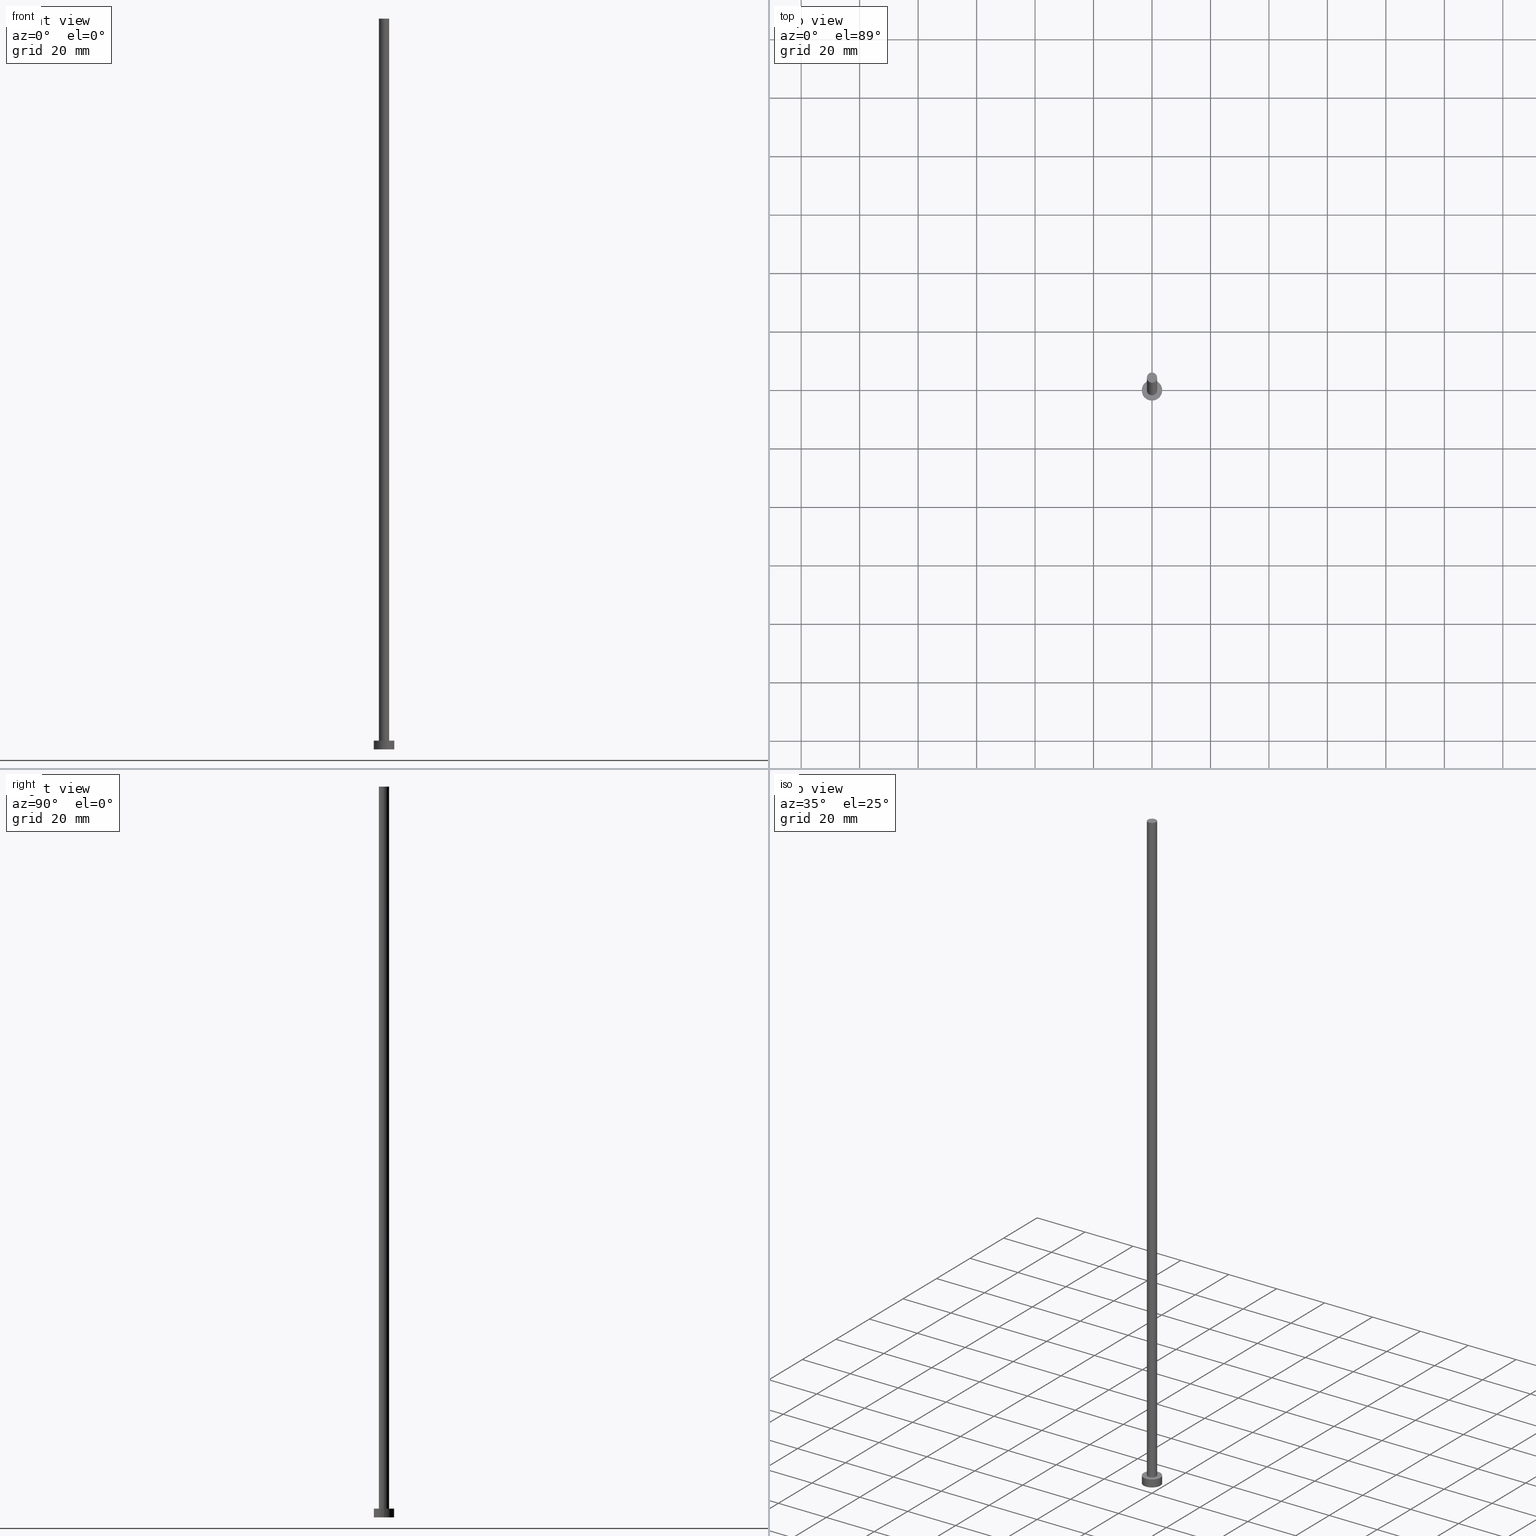
[diagram: canonical four-view strip — front | top / right | iso, engineering-drawing reading convention]
A machine part, canonical four-view strip (front | top / right | iso — engineering-drawing reading convention). The complete STEP part file that produces these views, byte-faithful:
ISO-10303-21;
HEADER;
FILE_DESCRIPTION (( 'STEP AP203' ),
    '1' );
FILE_NAME ('af40.STEP',
    '2023-02-12T12:42:15',
    ( '' ),
    ( '' ),
    'SwSTEP 2.0',
    'SolidWorks 2019',
    '' );
FILE_SCHEMA (( 'CONFIG_CONTROL_DESIGN' ));
ENDSEC;

DATA;
#1 = CALENDAR_DATE ( 2023, 12, 2 ) ;
#2 = CC_DESIGN_SECURITY_CLASSIFICATION ( #249, ( #170 ) ) ;
#3 = CARTESIAN_POINT ( 'NONE',  ( 1.750000000000000000, 2.143131898507868297E-16, 250.0000000000000000 ) ) ;
#4 = PRODUCT ( 'af40', 'af40', '', ( #33 ) ) ;
#5 = FACE_OUTER_BOUND ( 'NONE', #206, .T. ) ;
#6 = CYLINDRICAL_SURFACE ( 'NONE', #65, 3.500000000000000444 ) ;
#7 = CC_DESIGN_APPROVAL ( #126, ( #170 ) ) ;
#8 = ORIENTED_EDGE ( 'NONE', *, *, #120, .T. ) ;
#9 = CARTESIAN_POINT ( 'NONE',  ( -1.750000000000000000, 0.000000000000000000, 250.0000000000000000 ) ) ;
#10 = DIRECTION ( 'NONE',  ( 0.000000000000000000, 0.000000000000000000, 1.000000000000000000 ) ) ;
#11 = PLANE ( 'NONE',  #173 ) ;
#12 = CARTESIAN_POINT ( 'NONE',  ( 0.000000000000000000, 0.000000000000000000, 0.000000000000000000 ) ) ;
#13 = PLANE ( 'NONE',  #70 ) ;
#14 = UNCERTAINTY_MEASURE_WITH_UNIT (LENGTH_MEASURE( 1.000000000000000082E-05 ), #54, 'distance_accuracy_value', 'NONE');
#15 = ADVANCED_BREP_SHAPE_REPRESENTATION ( 'af40', ( #215, #155 ), #100 ) ;
#16 = DIRECTION ( 'NONE',  ( 1.000000000000000000, 0.000000000000000000, 0.000000000000000000 ) ) ;
#17 = ORIENTED_EDGE ( 'NONE', *, *, #174, .T. ) ;
#18 = CC_DESIGN_PERSON_AND_ORGANIZATION_ASSIGNMENT ( #169, #142, ( #59 ) ) ;
#19 = APPROVAL_ROLE ( '' ) ;
#20 = CARTESIAN_POINT ( 'NONE',  ( -1.750000000000000000, 0.000000000000000000, 3.000000000000000000 ) ) ;
#21 = DIRECTION ( 'NONE',  ( -1.000000000000000000, 0.000000000000000000, 0.000000000000000000 ) ) ;
#22 = PERSON ( 'NEUR�EN�', 'NEUR�EN�', 'NEUR�EN�', ('NEUR�EN�'), ('NEUR�EN�'), ('NEUR�EN�') ) ;
#23 = CARTESIAN_POINT ( 'NONE',  ( 0.000000000000000000, 0.000000000000000000, 250.0000000000000000 ) ) ;
#24 = ORIENTED_EDGE ( 'NONE', *, *, #174, .F. ) ;
#25 = CLOSED_SHELL ( 'NONE', ( #79, #152, #230, #98, #101, #85, #191 ) ) ;
#26 = APPROVAL ( #45, 'NEUR�EN�' ) ;
#27 = ORIENTED_EDGE ( 'NONE', *, *, #124, .F. ) ;
#28 = DIRECTION ( 'NONE',  ( 1.000000000000000000, 0.000000000000000000, 0.000000000000000000 ) ) ;
#29 = APPLICATION_PROTOCOL_DEFINITION ( 'international standard', 'config_control_design', 1994, #209 ) ;
#30 = DIRECTION ( 'NONE',  ( -0.000000000000000000, -0.000000000000000000, -1.000000000000000000 ) ) ;
#31 = LINE ( 'NONE', #211, #149 ) ;
#32 = AXIS2_PLACEMENT_3D ( 'NONE', #241, #58, #131 ) ;
#33 = MECHANICAL_CONTEXT ( 'NONE', #209, 'mechanical' ) ;
#34 = CARTESIAN_POINT ( 'NONE',  ( 0.000000000000000000, 0.000000000000000000, 0.000000000000000000 ) ) ;
#35 = CC_DESIGN_PERSON_AND_ORGANIZATION_ASSIGNMENT ( #158, #162, ( #170 ) ) ;
#36 = DIRECTION ( 'NONE',  ( 0.000000000000000000, 0.000000000000000000, 1.000000000000000000 ) ) ;
#37 = APPROVAL_DATE_TIME ( #128, #126 ) ;
#38 = DIRECTION ( 'NONE',  ( 0.000000000000000000, 0.000000000000000000, 1.000000000000000000 ) ) ;
#39 = DIRECTION ( 'NONE',  ( 0.000000000000000000, 0.000000000000000000, 1.000000000000000000 ) ) ;
#40 = CARTESIAN_POINT ( 'NONE',  ( -1.750000000000000000, 0.000000000000000000, 250.0000000000000000 ) ) ;
#41 = EDGE_LOOP ( 'NONE', ( #115, #95 ) ) ;
#42 = EDGE_LOOP ( 'NONE', ( #236, #139 ) ) ;
#43 = CARTESIAN_POINT ( 'NONE',  ( 3.500000000000000444, 4.286263797015737088E-16, 0.000000000000000000 ) ) ;
#44 = CC_DESIGN_APPROVAL ( #26, ( #59 ) ) ;
#45 = APPROVAL_STATUS ( 'not_yet_approved' ) ;
#46 = PERSON_AND_ORGANIZATION_ROLE ( 'classification_officer' ) ;
#47 = APPROVAL_ROLE ( '' ) ;
#48 = LINE ( 'NONE', #255, #177 ) ;
#49 = PLANE ( 'NONE',  #110 ) ;
#50 = LOCAL_TIME ( 13, 42, 15.00000000000000000, #250 ) ;
#51 = CIRCLE ( 'NONE', #57, 1.750000000000000000 ) ;
#52 = CIRCLE ( 'NONE', #72, 3.500000000000000444 ) ;
#53 = CALENDAR_DATE ( 2023, 12, 2 ) ;
#54 =( LENGTH_UNIT ( ) NAMED_UNIT ( * ) SI_UNIT ( .MILLI., .METRE. ) );
#55 = CC_DESIGN_PERSON_AND_ORGANIZATION_ASSIGNMENT ( #60, #46, ( #249 ) ) ;
#56 = DIRECTION ( 'NONE',  ( -0.000000000000000000, -0.000000000000000000, -1.000000000000000000 ) ) ;
#57 = AXIS2_PLACEMENT_3D ( 'NONE', #118, #171, #234 ) ;
#58 = DIRECTION ( 'NONE',  ( -0.000000000000000000, -0.000000000000000000, -1.000000000000000000 ) ) ;
#59 = PRODUCT_DEFINITION ( 'NEZN�M�', '', #170, #67 ) ;
#60 = PERSON_AND_ORGANIZATION ( #22, #178 ) ;
#61 = DIRECTION ( 'NONE',  ( 1.000000000000000000, 0.000000000000000000, 0.000000000000000000 ) ) ;
#62 = VERTEX_POINT ( 'NONE', #113 ) ;
#63 = CARTESIAN_POINT ( 'NONE',  ( 0.000000000000000000, 0.000000000000000000, 3.000000000000000000 ) ) ;
#64 = ORIENTED_EDGE ( 'NONE', *, *, #140, .F. ) ;
#65 = AXIS2_PLACEMENT_3D ( 'NONE', #77, #201, #225 ) ;
#66 = PERSON_AND_ORGANIZATION ( #22, #178 ) ;
#67 = DESIGN_CONTEXT ( 'detailed design', #222, 'design' ) ;
#68 = EDGE_CURVE ( 'NONE', #71, #185, #180, .T. ) ;
#69 = DIRECTION ( 'NONE',  ( -0.000000000000000000, -0.000000000000000000, -1.000000000000000000 ) ) ;
#70 = AXIS2_PLACEMENT_3D ( 'NONE', #88, #105, #232 ) ;
#71 = VERTEX_POINT ( 'NONE', #130 ) ;
#72 = AXIS2_PLACEMENT_3D ( 'NONE', #63, #240, #61 ) ;
#73 = DATE_AND_TIME ( #1, #175 ) ;
#74 = DATE_TIME_ROLE ( 'classification_date' ) ;
#75 = FACE_OUTER_BOUND ( 'NONE', #107, .T. ) ;
#76 = VERTEX_POINT ( 'NONE', #40 ) ;
#77 = CARTESIAN_POINT ( 'NONE',  ( 0.000000000000000000, 0.000000000000000000, 3.000000000000000000 ) ) ;
#78 = CARTESIAN_POINT ( 'NONE',  ( 0.000000000000000000, 0.000000000000000000, 3.000000000000000000 ) ) ;
#79 = ADVANCED_FACE ( 'NONE', ( #75 ), #134, .T. ) ;
#80 = AXIS2_PLACEMENT_3D ( 'NONE', #92, #36, #198 ) ;
#81 = ORIENTED_EDGE ( 'NONE', *, *, #93, .T. ) ;
#82 = EDGE_LOOP ( 'NONE', ( #224, #200 ) ) ;
#83 = PERSON_AND_ORGANIZATION ( #22, #178 ) ;
#84 = DIRECTION ( 'NONE',  ( 1.000000000000000000, 0.000000000000000000, 0.000000000000000000 ) ) ;
#85 = ADVANCED_FACE ( 'NONE', ( #5 ), #157, .T. ) ;
#86 = CIRCLE ( 'NONE', #213, 3.500000000000000444 ) ;
#87 = LOCAL_TIME ( 13, 42, 15.00000000000000000, #237 ) ;
#88 = CARTESIAN_POINT ( 'NONE',  ( 0.000000000000000000, 0.000000000000000000, 3.000000000000000000 ) ) ;
#89 = ORIENTED_EDGE ( 'NONE', *, *, #184, .F. ) ;
#90 = CARTESIAN_POINT ( 'NONE',  ( 1.750000000000000000, 2.143131898507868297E-16, 3.000000000000000000 ) ) ;
#91 = APPROVAL ( #235, 'NEUR�EN�' ) ;
#92 = CARTESIAN_POINT ( 'NONE',  ( 0.000000000000000000, 0.000000000000000000, 3.000000000000000000 ) ) ;
#93 = EDGE_CURVE ( 'NONE', #163, #185, #196, .T. ) ;
#94 = CARTESIAN_POINT ( 'NONE',  ( 0.000000000000000000, 0.000000000000000000, 3.000000000000000000 ) ) ;
#95 = ORIENTED_EDGE ( 'NONE', *, *, #161, .F. ) ;
#96 = EDGE_LOOP ( 'NONE', ( #226, #203, #17, #156 ) ) ;
#97 = DATE_TIME_ROLE ( 'creation_date' ) ;
#98 = ADVANCED_FACE ( 'NONE', ( #122, #141 ), #13, .T. ) ;
#99 = CYLINDRICAL_SURFACE ( 'NONE', #148, 3.500000000000000444 ) ;
#100 =( GEOMETRIC_REPRESENTATION_CONTEXT ( 3 ) GLOBAL_UNCERTAINTY_ASSIGNED_CONTEXT ( ( #14 ) ) GLOBAL_UNIT_ASSIGNED_CONTEXT ( ( #54, #129, #204 ) ) REPRESENTATION_CONTEXT ( 'NONE', 'WORKASPACE' ) );
#101 = ADVANCED_FACE ( 'NONE', ( #218 ), #11, .F. ) ;
#102 = CC_DESIGN_DATE_AND_TIME_ASSIGNMENT ( #151, #74, ( #249 ) ) ;
#103 = APPROVAL_DATE_TIME ( #190, #26 ) ;
#104 = COORDINATED_UNIVERSAL_TIME_OFFSET ( 1, 0, .AHEAD. ) ;
#105 = DIRECTION ( 'NONE',  ( 0.000000000000000000, 0.000000000000000000, 1.000000000000000000 ) ) ;
#106 = APPROVAL_STATUS ( 'not_yet_approved' ) ;
#107 = EDGE_LOOP ( 'NONE', ( #64, #243, #164, #220 ) ) ;
#108 = EDGE_LOOP ( 'NONE', ( #27, #147 ) ) ;
#109 = PERSON_AND_ORGANIZATION ( #22, #178 ) ;
#110 = AXIS2_PLACEMENT_3D ( 'NONE', #181, #38, #176 ) ;
#111 = EDGE_CURVE ( 'NONE', #76, #71, #51, .T. ) ;
#112 = PERSON_AND_ORGANIZATION ( #22, #178 ) ;
#113 = CARTESIAN_POINT ( 'NONE',  ( 3.500000000000000444, 4.286263797015737088E-16, 3.000000000000000000 ) ) ;
#114 = FACE_OUTER_BOUND ( 'NONE', #96, .T. ) ;
#115 = ORIENTED_EDGE ( 'NONE', *, *, #93, .F. ) ;
#116 = CIRCLE ( 'NONE', #138, 1.750000000000000000 ) ;
#117 = PERSON_AND_ORGANIZATION_ROLE ( 'design_owner' ) ;
#118 = CARTESIAN_POINT ( 'NONE',  ( 0.000000000000000000, 0.000000000000000000, 250.0000000000000000 ) ) ;
#119 = COORDINATED_UNIVERSAL_TIME_OFFSET ( 1, 0, .AHEAD. ) ;
#120 = EDGE_CURVE ( 'NONE', #62, #244, #48, .T. ) ;
#121 = COORDINATED_UNIVERSAL_TIME_OFFSET ( 1, 0, .AHEAD. ) ;
#122 = FACE_BOUND ( 'NONE', #41, .T. ) ;
#123 = APPLICATION_PROTOCOL_DEFINITION ( 'international standard', 'config_control_design', 1994, #222 ) ;
#124 = EDGE_CURVE ( 'NONE', #172, #244, #86, .T. ) ;
#125 = ORIENTED_EDGE ( 'NONE', *, *, #193, .T. ) ;
#126 = APPROVAL ( #106, 'NEUR�EN�' ) ;
#127 = CIRCLE ( 'NONE', #160, 3.500000000000000444 ) ;
#128 = DATE_AND_TIME ( #53, #87 ) ;
#129 =( NAMED_UNIT ( * ) PLANE_ANGLE_UNIT ( ) SI_UNIT ( $, .RADIAN. ) );
#130 = CARTESIAN_POINT ( 'NONE',  ( 1.750000000000000000, 2.143131898507868297E-16, 250.0000000000000000 ) ) ;
#131 = DIRECTION ( 'NONE',  ( -1.000000000000000000, 0.000000000000000000, 0.000000000000000000 ) ) ;
#132 = LOCAL_TIME ( 13, 42, 15.00000000000000000, #119 ) ;
#133 = ORIENTED_EDGE ( 'NONE', *, *, #68, .F. ) ;
#134 = CYLINDRICAL_SURFACE ( 'NONE', #239, 1.750000000000000000 ) ;
#135 = CARTESIAN_POINT ( 'NONE',  ( -3.500000000000000444, 0.000000000000000000, 3.000000000000000000 ) ) ;
#136 = DIRECTION ( 'NONE',  ( -1.000000000000000000, 0.000000000000000000, 0.000000000000000000 ) ) ;
#137 = SECURITY_CLASSIFICATION_LEVEL ( 'unclassified' ) ;
#138 = AXIS2_PLACEMENT_3D ( 'NONE', #188, #10, #84 ) ;
#139 = ORIENTED_EDGE ( 'NONE', *, *, #140, .T. ) ;
#140 = EDGE_CURVE ( 'NONE', #71, #76, #116, .T. ) ;
#141 = FACE_OUTER_BOUND ( 'NONE', #82, .T. ) ;
#142 = PERSON_AND_ORGANIZATION_ROLE ( 'creator' ) ;
#143 = CC_DESIGN_APPROVAL ( #91, ( #249 ) ) ;
#144 = DIRECTION ( 'NONE',  ( 1.000000000000000000, 0.000000000000000000, -0.000000000000000000 ) ) ;
#145 = FACE_OUTER_BOUND ( 'NONE', #42, .T. ) ;
#146 = APPROVAL_ROLE ( '' ) ;
#147 = ORIENTED_EDGE ( 'NONE', *, *, #179, .F. ) ;
#148 = AXIS2_PLACEMENT_3D ( 'NONE', #246, #182, #136 ) ;
#149 = VECTOR ( 'NONE', #30, 1000.000000000000000 ) ;
#150 = ORIENTED_EDGE ( 'NONE', *, *, #111, .F. ) ;
#151 = DATE_AND_TIME ( #154, #50 ) ;
#152 = ADVANCED_FACE ( 'NONE', ( #248 ), #99, .T. ) ;
#153 = SHAPE_DEFINITION_REPRESENTATION ( #223, #15 ) ;
#154 = CALENDAR_DATE ( 2023, 12, 2 ) ;
#155 = AXIS2_PLACEMENT_3D ( 'NONE', #12, #251, #254 ) ;
#156 = ORIENTED_EDGE ( 'NONE', *, *, #124, .T. ) ;
#157 = CYLINDRICAL_SURFACE ( 'NONE', #32, 1.750000000000000000 ) ;
#158 = PERSON_AND_ORGANIZATION ( #22, #178 ) ;
#159 = EDGE_LOOP ( 'NONE', ( #89, #8, #247, #24 ) ) ;
#160 = AXIS2_PLACEMENT_3D ( 'NONE', #221, #194, #16 ) ;
#161 = EDGE_CURVE ( 'NONE', #185, #163, #219, .T. ) ;
#162 = PERSON_AND_ORGANIZATION_ROLE ( 'design_supplier' ) ;
#163 = VERTEX_POINT ( 'NONE', #20 ) ;
#164 = ORIENTED_EDGE ( 'NONE', *, *, #161, .T. ) ;
#165 = CALENDAR_DATE ( 2023, 12, 2 ) ;
#166 = PERSON_AND_ORGANIZATION ( #22, #178 ) ;
#167 = DIRECTION ( 'NONE',  ( 0.000000000000000000, 0.000000000000000000, 1.000000000000000000 ) ) ;
#168 = VECTOR ( 'NONE', #56, 1000.000000000000000 ) ;
#169 = PERSON_AND_ORGANIZATION ( #22, #178 ) ;
#170 = PRODUCT_DEFINITION_FORMATION_WITH_SPECIFIED_SOURCE ( 'LIBOVOLN�', '', #4, .NOT_KNOWN. ) ;
#171 = DIRECTION ( 'NONE',  ( 0.000000000000000000, 0.000000000000000000, 1.000000000000000000 ) ) ;
#172 = VERTEX_POINT ( 'NONE', #242 ) ;
#173 = AXIS2_PLACEMENT_3D ( 'NONE', #34, #167, #144 ) ;
#174 = EDGE_CURVE ( 'NONE', #195, #172, #31, .T. ) ;
#175 = LOCAL_TIME ( 13, 42, 15.00000000000000000, #104 ) ;
#176 = DIRECTION ( 'NONE',  ( 1.000000000000000000, 0.000000000000000000, -0.000000000000000000 ) ) ;
#177 = VECTOR ( 'NONE', #69, 1000.000000000000000 ) ;
#178 = ORGANIZATION ( 'NEUR�EN�', 'NEUR�EN�', '' ) ;
#179 = EDGE_CURVE ( 'NONE', #244, #172, #127, .T. ) ;
#180 = LINE ( 'NONE', #3, #168 ) ;
#181 = CARTESIAN_POINT ( 'NONE',  ( 0.000000000000000000, 0.000000000000000000, 250.0000000000000000 ) ) ;
#182 = DIRECTION ( 'NONE',  ( -0.000000000000000000, -0.000000000000000000, -1.000000000000000000 ) ) ;
#183 = DIRECTION ( 'NONE',  ( 0.000000000000000000, 0.000000000000000000, 1.000000000000000000 ) ) ;
#184 = EDGE_CURVE ( 'NONE', #62, #195, #189, .T. ) ;
#185 = VERTEX_POINT ( 'NONE', #90 ) ;
#186 = VECTOR ( 'NONE', #245, 1000.000000000000000 ) ;
#187 = LINE ( 'NONE', #9, #186 ) ;
#188 = CARTESIAN_POINT ( 'NONE',  ( 0.000000000000000000, 0.000000000000000000, 250.0000000000000000 ) ) ;
#189 = CIRCLE ( 'NONE', #80, 3.500000000000000444 ) ;
#190 = DATE_AND_TIME ( #212, #132 ) ;
#191 = ADVANCED_FACE ( 'NONE', ( #145 ), #49, .T. ) ;
#192 = APPROVAL_DATE_TIME ( #73, #91 ) ;
#193 = EDGE_CURVE ( 'NONE', #76, #163, #187, .T. ) ;
#194 = DIRECTION ( 'NONE',  ( 0.000000000000000000, 0.000000000000000000, 1.000000000000000000 ) ) ;
#195 = VERTEX_POINT ( 'NONE', #135 ) ;
#196 = CIRCLE ( 'NONE', #207, 1.750000000000000000 ) ;
#197 = AXIS2_PLACEMENT_3D ( 'NONE', #78, #39, #227 ) ;
#198 = DIRECTION ( 'NONE',  ( 1.000000000000000000, 0.000000000000000000, 0.000000000000000000 ) ) ;
#199 = PERSON_AND_ORGANIZATION_ROLE ( 'creator' ) ;
#200 = ORIENTED_EDGE ( 'NONE', *, *, #184, .T. ) ;
#201 = DIRECTION ( 'NONE',  ( -0.000000000000000000, -0.000000000000000000, -1.000000000000000000 ) ) ;
#202 = DIRECTION ( 'NONE',  ( -0.000000000000000000, -0.000000000000000000, -1.000000000000000000 ) ) ;
#203 = ORIENTED_EDGE ( 'NONE', *, *, #238, .F. ) ;
#204 =( NAMED_UNIT ( * ) SI_UNIT ( $, .STERADIAN. ) SOLID_ANGLE_UNIT ( ) );
#205 = PRODUCT_RELATED_PRODUCT_CATEGORY ( 'detail', '', ( #4 ) ) ;
#206 = EDGE_LOOP ( 'NONE', ( #133, #150, #125, #81 ) ) ;
#207 = AXIS2_PLACEMENT_3D ( 'NONE', #94, #183, #216 ) ;
#208 = APPROVAL_PERSON_ORGANIZATION ( #66, #26, #47 ) ;
#209 = APPLICATION_CONTEXT ( 'configuration controlled 3d designs of mechanical parts and assemblies' ) ;
#210 = DIRECTION ( 'NONE',  ( 0.000000000000000000, 0.000000000000000000, 1.000000000000000000 ) ) ;
#211 = CARTESIAN_POINT ( 'NONE',  ( -3.500000000000000444, 0.000000000000000000, 3.000000000000000000 ) ) ;
#212 = CALENDAR_DATE ( 2023, 12, 2 ) ;
#213 = AXIS2_PLACEMENT_3D ( 'NONE', #228, #210, #28 ) ;
#214 = APPROVAL_PERSON_ORGANIZATION ( #109, #91, #19 ) ;
#215 = MANIFOLD_SOLID_BREP ( 'P�idat vysunut�m3', #25 ) ;
#216 = DIRECTION ( 'NONE',  ( 1.000000000000000000, 0.000000000000000000, 0.000000000000000000 ) ) ;
#217 = DATE_AND_TIME ( #165, #229 ) ;
#218 = FACE_OUTER_BOUND ( 'NONE', #108, .T. ) ;
#219 = CIRCLE ( 'NONE', #197, 1.750000000000000000 ) ;
#220 = ORIENTED_EDGE ( 'NONE', *, *, #193, .F. ) ;
#221 = CARTESIAN_POINT ( 'NONE',  ( 0.000000000000000000, 0.000000000000000000, 0.000000000000000000 ) ) ;
#222 = APPLICATION_CONTEXT ( 'configuration controlled 3d designs of mechanical parts and assemblies' ) ;
#223 = PRODUCT_DEFINITION_SHAPE ( 'NONE', 'NONE',  #59 ) ;
#224 = ORIENTED_EDGE ( 'NONE', *, *, #238, .T. ) ;
#225 = DIRECTION ( 'NONE',  ( -1.000000000000000000, 0.000000000000000000, 0.000000000000000000 ) ) ;
#226 = ORIENTED_EDGE ( 'NONE', *, *, #120, .F. ) ;
#227 = DIRECTION ( 'NONE',  ( 1.000000000000000000, 0.000000000000000000, 0.000000000000000000 ) ) ;
#228 = CARTESIAN_POINT ( 'NONE',  ( 0.000000000000000000, 0.000000000000000000, 0.000000000000000000 ) ) ;
#229 = LOCAL_TIME ( 13, 42, 15.00000000000000000, #121 ) ;
#230 = ADVANCED_FACE ( 'NONE', ( #114 ), #6, .T. ) ;
#231 = CC_DESIGN_DATE_AND_TIME_ASSIGNMENT ( #217, #97, ( #59 ) ) ;
#232 = DIRECTION ( 'NONE',  ( 1.000000000000000000, 0.000000000000000000, -0.000000000000000000 ) ) ;
#233 = APPROVAL_PERSON_ORGANIZATION ( #83, #126, #146 ) ;
#234 = DIRECTION ( 'NONE',  ( 1.000000000000000000, 0.000000000000000000, 0.000000000000000000 ) ) ;
#235 = APPROVAL_STATUS ( 'not_yet_approved' ) ;
#236 = ORIENTED_EDGE ( 'NONE', *, *, #111, .T. ) ;
#237 = COORDINATED_UNIVERSAL_TIME_OFFSET ( 1, 0, .AHEAD. ) ;
#238 = EDGE_CURVE ( 'NONE', #195, #62, #52, .T. ) ;
#239 = AXIS2_PLACEMENT_3D ( 'NONE', #23, #202, #21 ) ;
#240 = DIRECTION ( 'NONE',  ( 0.000000000000000000, 0.000000000000000000, 1.000000000000000000 ) ) ;
#241 = CARTESIAN_POINT ( 'NONE',  ( 0.000000000000000000, 0.000000000000000000, 250.0000000000000000 ) ) ;
#242 = CARTESIAN_POINT ( 'NONE',  ( -3.500000000000000444, 0.000000000000000000, 0.000000000000000000 ) ) ;
#243 = ORIENTED_EDGE ( 'NONE', *, *, #68, .T. ) ;
#244 = VERTEX_POINT ( 'NONE', #43 ) ;
#245 = DIRECTION ( 'NONE',  ( -0.000000000000000000, -0.000000000000000000, -1.000000000000000000 ) ) ;
#246 = CARTESIAN_POINT ( 'NONE',  ( 0.000000000000000000, 0.000000000000000000, 3.000000000000000000 ) ) ;
#247 = ORIENTED_EDGE ( 'NONE', *, *, #179, .T. ) ;
#248 = FACE_OUTER_BOUND ( 'NONE', #159, .T. ) ;
#249 = SECURITY_CLASSIFICATION ( '', '', #137 ) ;
#250 = COORDINATED_UNIVERSAL_TIME_OFFSET ( 1, 0, .AHEAD. ) ;
#251 = DIRECTION ( 'NONE',  ( 0.000000000000000000, 0.000000000000000000, 1.000000000000000000 ) ) ;
#252 = CC_DESIGN_PERSON_AND_ORGANIZATION_ASSIGNMENT ( #166, #117, ( #4 ) ) ;
#253 = CC_DESIGN_PERSON_AND_ORGANIZATION_ASSIGNMENT ( #112, #199, ( #170 ) ) ;
#254 = DIRECTION ( 'NONE',  ( 1.000000000000000000, 0.000000000000000000, 0.000000000000000000 ) ) ;
#255 = CARTESIAN_POINT ( 'NONE',  ( 3.500000000000000444, 4.286263797015737088E-16, 3.000000000000000000 ) ) ;
ENDSEC;
END-ISO-10303-21;
